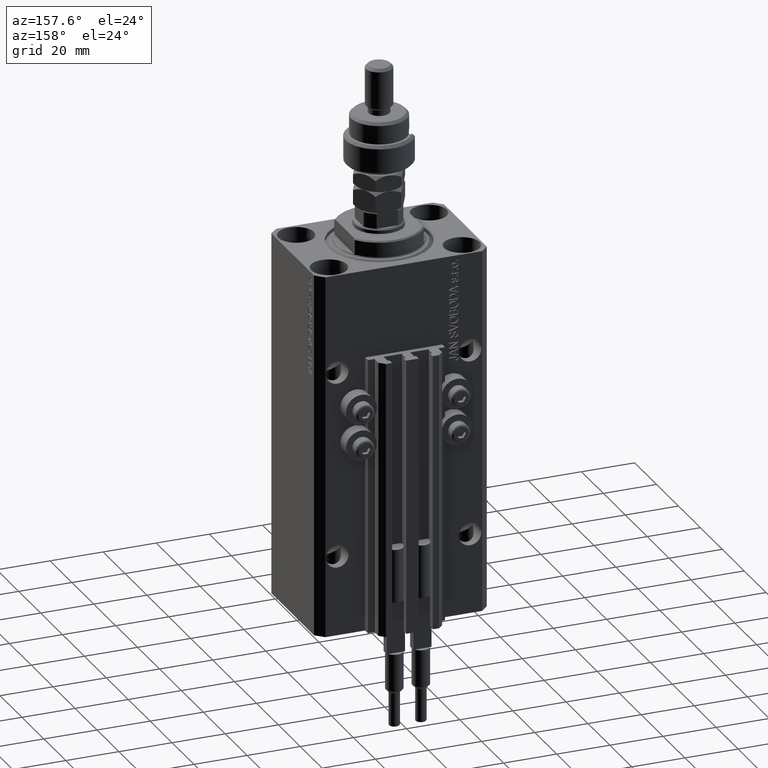
[diagram: clean part render]
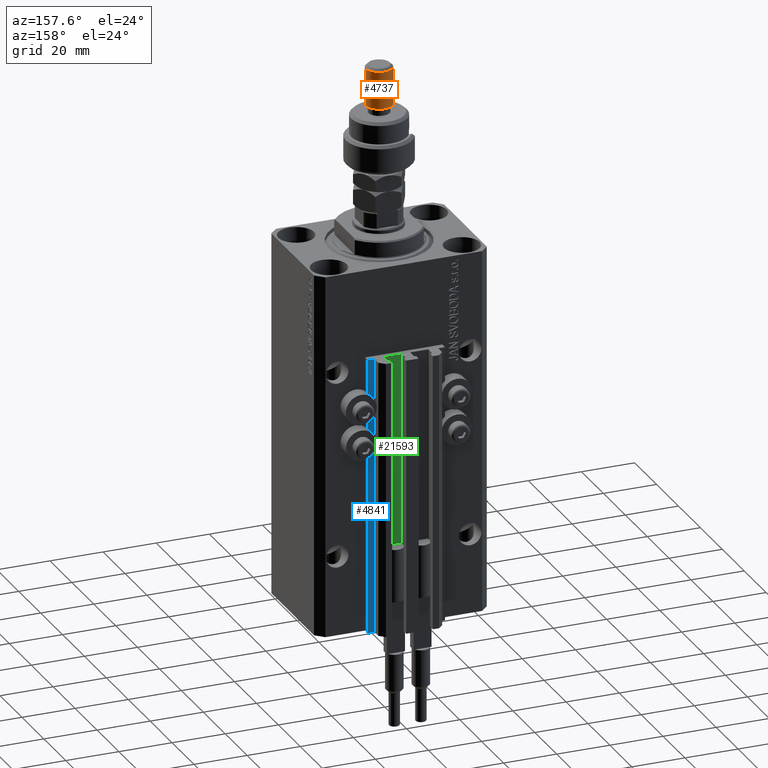
[diagram: same view with three faces highlighted in distinct colors, each labeled with its STEP entity id]
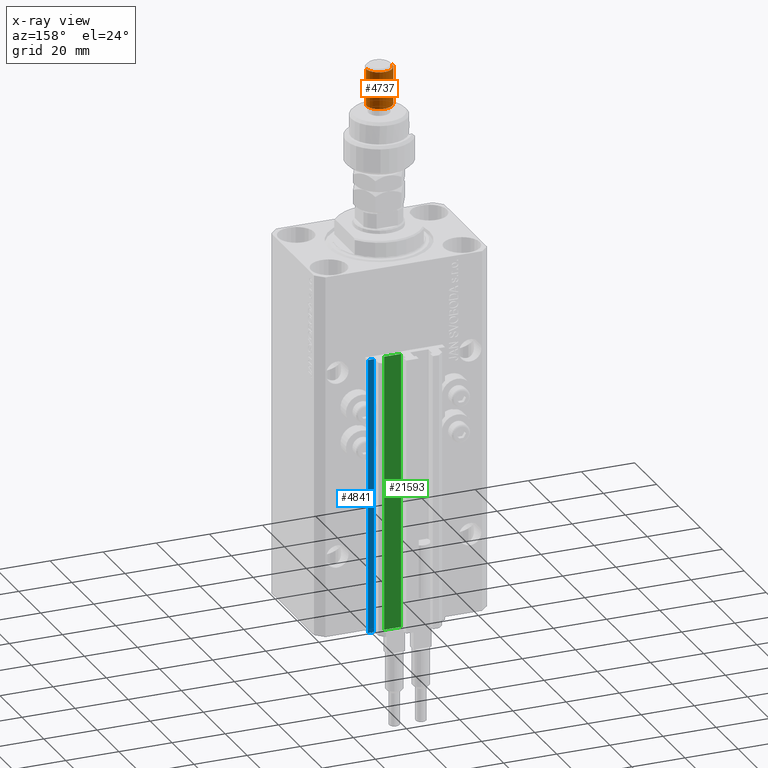
[diagram: x-ray of the same camera — body ghosted, the three highlighted faces saturated]
A machine part, auxiliary view with three faces highlighted in distinct colors.
The next image is the same camera in x-ray (body ghosted, the three faces saturated) — at least one of them is partly hidden behind the body in this view.
Their STEP definitions:

[orange] entity #4737 — the highlighted cylindrical surface (edge-blend (fillet) strip) has radius 5 mm, axis along (-0, -0, -1).
#748 = EDGE_CURVE ( 'NONE', #48514, #1369, #22086, .T. ) ;
#1369 = VERTEX_POINT ( 'NONE', #41256 ) ;
#2094 = LINE ( 'NONE', #34778, #39098 ) ;
#2230 = DIRECTION ( 'NONE',  ( 1.000000000000000000, 0.000000000000000000, 0.000000000000000000 ) ) ;
#3106 = FACE_OUTER_BOUND ( 'NONE', #40029, .T. ) ;
#4737 = ADVANCED_FACE ( 'NONE', ( #3106 ), #50611, .T. ) ;
#6013 = CIRCLE ( 'NONE', #43266, 5.000000000000000888 ) ;
#7583 = CIRCLE ( 'NONE', #14220, 5.000000000000000888 ) ;
#10874 = VERTEX_POINT ( 'NONE', #35275 ) ;
#11263 = ORIENTED_EDGE ( 'NONE', *, *, #15641, .T. ) ;
#14186 = CARTESIAN_POINT ( 'NONE',  ( 0.000000000000000000, 0.000000000000000000, 21.99999999999999289 ) ) ;
#14220 = AXIS2_PLACEMENT_3D ( 'NONE', #23406, #35079, #43124 ) ;
#15641 = EDGE_CURVE ( 'NONE', #10874, #48514, #7583, .T. ) ;
#17784 = EDGE_CURVE ( 'NONE', #1369, #36195, #6013, .T. ) ;
#19187 = CARTESIAN_POINT ( 'NONE',  ( 0.000000000000000000, 0.000000000000000000, 37.00000000000000000 ) ) ;
#22086 = LINE ( 'NONE', #37927, #36989 ) ;
#23406 = CARTESIAN_POINT ( 'NONE',  ( 0.000000000000000000, 0.000000000000000000, 36.00000000000000711 ) ) ;
#26101 = DIRECTION ( 'NONE',  ( -0.000000000000000000, -0.000000000000000000, 1.000000000000000000 ) ) ;
#26624 = ORIENTED_EDGE ( 'NONE', *, *, #17784, .T. ) ;
#30123 = DIRECTION ( 'NONE',  ( -0.000000000000000000, -0.000000000000000000, -1.000000000000000000 ) ) ;
#31189 = CARTESIAN_POINT ( 'NONE',  ( -5.000000000000000888, 0.000000000000000000, 21.99999999999999289 ) ) ;
#32405 = DIRECTION ( 'NONE',  ( -0.000000000000000000, -0.000000000000000000, -1.000000000000000000 ) ) ;
#34778 = CARTESIAN_POINT ( 'NONE',  ( -5.000000000000000888, 0.000000000000000000, 37.00000000000000000 ) ) ;
#35079 = DIRECTION ( 'NONE',  ( 0.000000000000000000, 0.000000000000000000, -1.000000000000000000 ) ) ;
#35275 = CARTESIAN_POINT ( 'NONE',  ( -5.000000000000000888, 0.000000000000000000, 36.00000000000000711 ) ) ;
#35363 = AXIS2_PLACEMENT_3D ( 'NONE', #19187, #32405, #47726 ) ;
#36195 = VERTEX_POINT ( 'NONE', #31189 ) ;
#36989 = VECTOR ( 'NONE', #50374, 1000.000000000000000 ) ;
#37927 = CARTESIAN_POINT ( 'NONE',  ( 5.000000000000000888, 6.123233995736767268E-16, 37.00000000000000000 ) ) ;
#39098 = VECTOR ( 'NONE', #30123, 1000.000000000000000 ) ;
#40029 = EDGE_LOOP ( 'NONE', ( #11263, #47284, #26624, #44551 ) ) ;
#41256 = CARTESIAN_POINT ( 'NONE',  ( 5.000000000000000888, 6.123233995736767268E-16, 21.99999999999999289 ) ) ;
#43124 = DIRECTION ( 'NONE',  ( 1.000000000000000000, 0.000000000000000000, 0.000000000000000000 ) ) ;
#43238 = CARTESIAN_POINT ( 'NONE',  ( 5.000000000000000888, 6.123233995736767268E-16, 36.00000000000000711 ) ) ;
#43266 = AXIS2_PLACEMENT_3D ( 'NONE', #14186, #26101, #2230 ) ;
#44551 = ORIENTED_EDGE ( 'NONE', *, *, #50595, .F. ) ;
#47284 = ORIENTED_EDGE ( 'NONE', *, *, #748, .T. ) ;
#47726 = DIRECTION ( 'NONE',  ( -1.000000000000000000, 0.000000000000000000, 0.000000000000000000 ) ) ;
#48514 = VERTEX_POINT ( 'NONE', #43238 ) ;
#50374 = DIRECTION ( 'NONE',  ( -0.000000000000000000, -0.000000000000000000, -1.000000000000000000 ) ) ;
#50595 = EDGE_CURVE ( 'NONE', #10874, #36195, #2094, .T. ) ;
#50611 = CYLINDRICAL_SURFACE ( 'NONE', #35363, 5.000000000000000888 ) ;

[blue] entity #4841 — the highlighted planar face has unit normal (0, 1, 0).
#214 = EDGE_LOOP ( 'NONE', ( #46911, #45023, #30702, #18265 ) ) ;
#246 = FACE_OUTER_BOUND ( 'NONE', #214, .T. ) ;
#318 = VERTEX_POINT ( 'NONE', #15778 ) ;
#2684 = CARTESIAN_POINT ( 'NONE',  ( 12.20000000000000284, 24.99999999999950617, -33.00000000000000000 ) ) ;
#4841 = ADVANCED_FACE ( 'NONE', ( #246 ), #16066, .T. ) ;
#8410 = VECTOR ( 'NONE', #50932, 1000.000000000000000 ) ;
#8551 = DIRECTION ( 'NONE',  ( 0.000000000000000000, 0.000000000000000000, 1.000000000000000000 ) ) ;
#10151 = EDGE_CURVE ( 'NONE', #34249, #318, #41197, .T. ) ;
#10898 = LINE ( 'NONE', #33983, #38505 ) ;
#11755 = CARTESIAN_POINT ( 'NONE',  ( 12.20000000000000284, 24.99999999999950617, -137.0000000000000000 ) ) ;
#12798 = VERTEX_POINT ( 'NONE', #33570 ) ;
#15778 = CARTESIAN_POINT ( 'NONE',  ( 14.49999999999999822, 24.99999999999950617, -33.00000000000000000 ) ) ;
#16066 = PLANE ( 'NONE',  #38659 ) ;
#16812 = EDGE_CURVE ( 'NONE', #34249, #12798, #31571, .T. ) ;
#18265 = ORIENTED_EDGE ( 'NONE', *, *, #50383, .T. ) ;
#18942 = VECTOR ( 'NONE', #36790, 1000.000000000000000 ) ;
#23276 = DIRECTION ( 'NONE',  ( -1.000000000000000000, 0.000000000000000000, 0.000000000000000000 ) ) ;
#23368 = EDGE_CURVE ( 'NONE', #318, #29566, #10898, .T. ) ;
#24115 = DIRECTION ( 'NONE',  ( 0.000000000000000000, 1.000000000000000000, -0.000000000000000000 ) ) ;
#29566 = VERTEX_POINT ( 'NONE', #2684 ) ;
#30702 = ORIENTED_EDGE ( 'NONE', *, *, #16812, .T. ) ;
#31300 = CARTESIAN_POINT ( 'NONE',  ( 14.49999999999999822, 24.99999999999950617, -137.0000000000000000 ) ) ;
#31450 = LINE ( 'NONE', #11755, #8410 ) ;
#31571 = LINE ( 'NONE', #31300, #45622 ) ;
#31887 = CARTESIAN_POINT ( 'NONE',  ( 14.49999999999999822, 24.99999999999950617, -137.0000000000000000 ) ) ;
#33570 = CARTESIAN_POINT ( 'NONE',  ( 12.20000000000000284, 24.99999999999950617, -137.0000000000000000 ) ) ;
#33983 = CARTESIAN_POINT ( 'NONE',  ( 14.49999999999999822, 24.99999999999950617, -33.00000000000000000 ) ) ;
#34249 = VERTEX_POINT ( 'NONE', #42317 ) ;
#36790 = DIRECTION ( 'NONE',  ( 0.000000000000000000, 0.000000000000000000, 1.000000000000000000 ) ) ;
#38505 = VECTOR ( 'NONE', #42772, 1000.000000000000000 ) ;
#38659 = AXIS2_PLACEMENT_3D ( 'NONE', #31887, #24115, #8551 ) ;
#41197 = LINE ( 'NONE', #48990, #18942 ) ;
#42317 = CARTESIAN_POINT ( 'NONE',  ( 14.49999999999999822, 24.99999999999950617, -137.0000000000000000 ) ) ;
#42772 = DIRECTION ( 'NONE',  ( -1.000000000000000000, 0.000000000000000000, 0.000000000000000000 ) ) ;
#45023 = ORIENTED_EDGE ( 'NONE', *, *, #10151, .F. ) ;
#45622 = VECTOR ( 'NONE', #23276, 1000.000000000000000 ) ;
#46911 = ORIENTED_EDGE ( 'NONE', *, *, #23368, .F. ) ;
#48990 = CARTESIAN_POINT ( 'NONE',  ( 14.49999999999999822, 24.99999999999950617, -137.0000000000000000 ) ) ;
#50383 = EDGE_CURVE ( 'NONE', #12798, #29566, #31450, .T. ) ;
#50932 = DIRECTION ( 'NONE',  ( 0.000000000000000000, 0.000000000000000000, 1.000000000000000000 ) ) ;

[green] entity #21593 — the highlighted planar face has unit normal (0, 1, 0).
#2946 = DIRECTION ( 'NONE',  ( 0.000000000000000000, 1.000000000000000000, -0.000000000000000000 ) ) ;
#5387 = AXIS2_PLACEMENT_3D ( 'NONE', #27071, #2946, #46794 ) ;
#6509 = CARTESIAN_POINT ( 'NONE',  ( 8.200000000000001066, 24.49999999999949196, -33.00000000000000000 ) ) ;
#7756 = CARTESIAN_POINT ( 'NONE',  ( 8.200000000000001066, 24.49999999999949196, -33.00000000000000000 ) ) ;
#9983 = EDGE_CURVE ( 'NONE', #36409, #45532, #24586, .T. ) ;
#10508 = FACE_OUTER_BOUND ( 'NONE', #11659, .T. ) ;
#11030 = VERTEX_POINT ( 'NONE', #24346 ) ;
#11551 = ORIENTED_EDGE ( 'NONE', *, *, #43703, .T. ) ;
#11659 = EDGE_LOOP ( 'NONE', ( #28372, #46607, #11551, #44613 ) ) ;
#12027 = CARTESIAN_POINT ( 'NONE',  ( 1.800000000000000933, 24.49999999999949196, -137.0000000000000000 ) ) ;
#12544 = LINE ( 'NONE', #12027, #14553 ) ;
#14553 = VECTOR ( 'NONE', #15920, 1000.000000000000000 ) ;
#14891 = PLANE ( 'NONE',  #5387 ) ;
#15920 = DIRECTION ( 'NONE',  ( 0.000000000000000000, 0.000000000000000000, 1.000000000000000000 ) ) ;
#19795 = VECTOR ( 'NONE', #39406, 1000.000000000000000 ) ;
#21496 = LINE ( 'NONE', #30057, #28796 ) ;
#21593 = ADVANCED_FACE ( 'NONE', ( #10508 ), #14891, .T. ) ;
#24346 = CARTESIAN_POINT ( 'NONE',  ( 1.800000000000000933, 24.49999999999949196, -137.0000000000000000 ) ) ;
#24586 = LINE ( 'NONE', #7756, #19795 ) ;
#25564 = EDGE_CURVE ( 'NONE', #11030, #45532, #12544, .T. ) ;
#27071 = CARTESIAN_POINT ( 'NONE',  ( 8.200000000000001066, 24.49999999999949196, -137.0000000000000000 ) ) ;
#28072 = CARTESIAN_POINT ( 'NONE',  ( 8.200000000000001066, 24.49999999999949196, -137.0000000000000000 ) ) ;
#28372 = ORIENTED_EDGE ( 'NONE', *, *, #9983, .F. ) ;
#28796 = VECTOR ( 'NONE', #37328, 1000.000000000000000 ) ;
#28932 = EDGE_CURVE ( 'NONE', #33298, #36409, #21496, .T. ) ;
#30057 = CARTESIAN_POINT ( 'NONE',  ( 8.200000000000001066, 24.49999999999949196, -137.0000000000000000 ) ) ;
#30821 = CARTESIAN_POINT ( 'NONE',  ( 1.800000000000000933, 24.49999999999949196, -33.00000000000000000 ) ) ;
#33298 = VERTEX_POINT ( 'NONE', #28072 ) ;
#36409 = VERTEX_POINT ( 'NONE', #6509 ) ;
#36874 = LINE ( 'NONE', #44665, #42457 ) ;
#37328 = DIRECTION ( 'NONE',  ( 0.000000000000000000, 0.000000000000000000, 1.000000000000000000 ) ) ;
#39406 = DIRECTION ( 'NONE',  ( -1.000000000000000000, 0.000000000000000000, 0.000000000000000000 ) ) ;
#42457 = VECTOR ( 'NONE', #49322, 1000.000000000000000 ) ;
#43703 = EDGE_CURVE ( 'NONE', #33298, #11030, #36874, .T. ) ;
#44613 = ORIENTED_EDGE ( 'NONE', *, *, #25564, .T. ) ;
#44665 = CARTESIAN_POINT ( 'NONE',  ( 8.200000000000001066, 24.49999999999949196, -137.0000000000000000 ) ) ;
#45532 = VERTEX_POINT ( 'NONE', #30821 ) ;
#46607 = ORIENTED_EDGE ( 'NONE', *, *, #28932, .F. ) ;
#46794 = DIRECTION ( 'NONE',  ( 0.000000000000000000, 0.000000000000000000, 1.000000000000000000 ) ) ;
#49322 = DIRECTION ( 'NONE',  ( -1.000000000000000000, 0.000000000000000000, 0.000000000000000000 ) ) ;